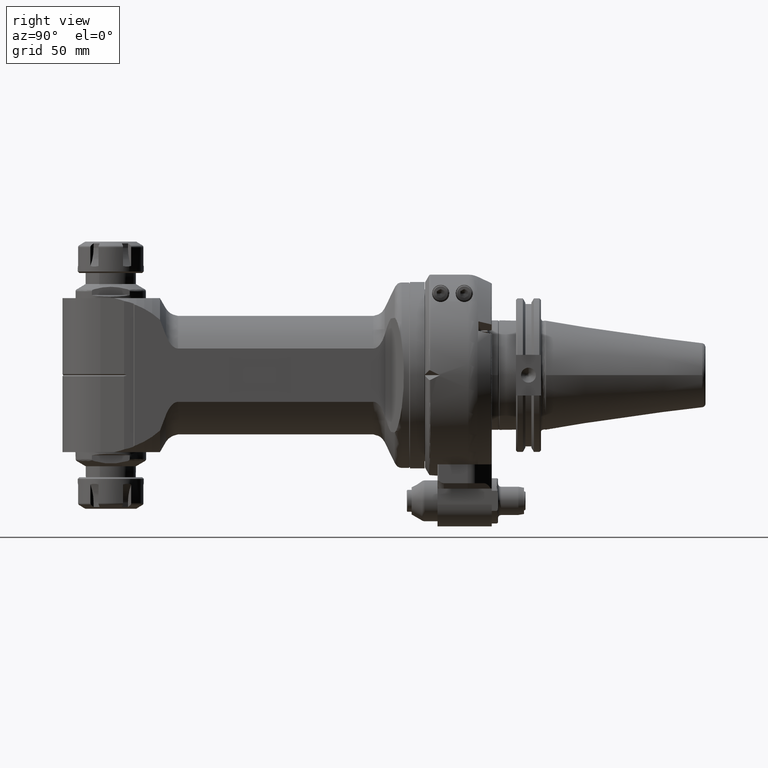
[diagram: clean part render]
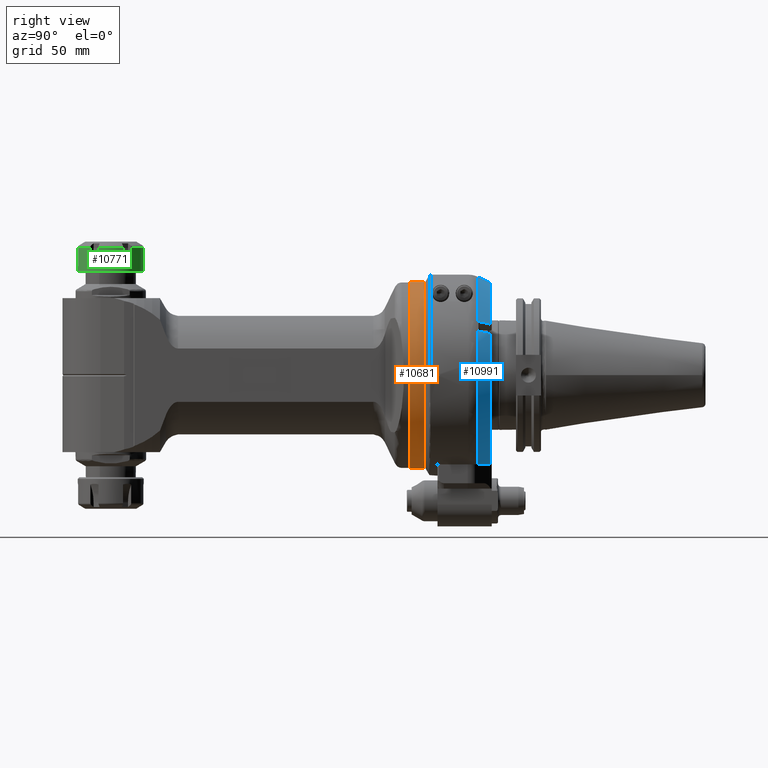
[diagram: same view with three faces highlighted in distinct colors, each labeled with its STEP entity id]
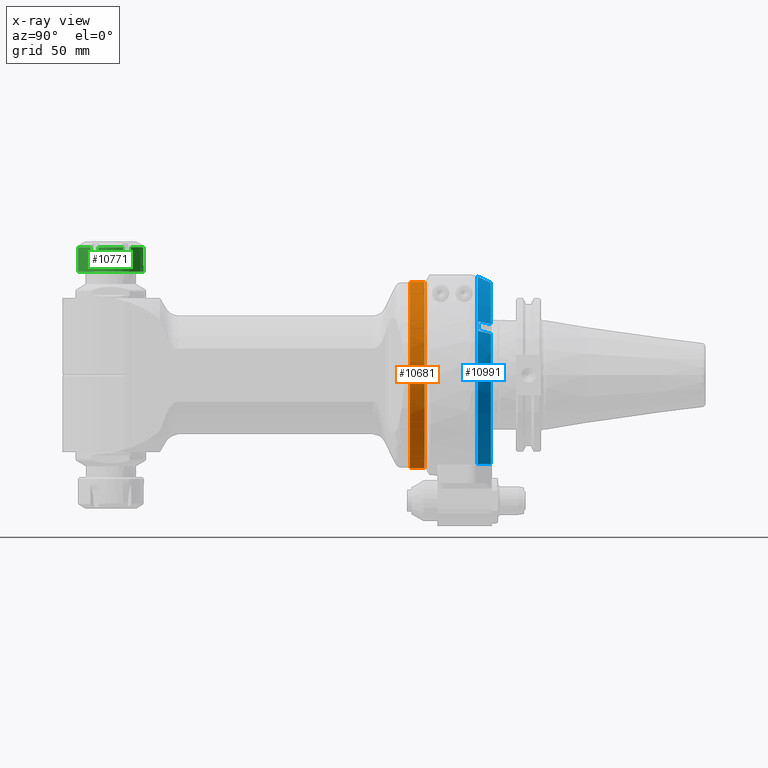
[diagram: x-ray of the same camera — body ghosted, the three highlighted faces saturated]
A machine part, right view with three faces highlighted in distinct colors.
The next image is the same camera in x-ray (body ghosted, the three faces saturated) — at least one of them is partly hidden behind the body in this view.
Their STEP definitions:

[orange] entity #10681 — the highlighted cylindrical surface (bore or boss wall) has radius 59.3 mm, axis along (-0, 1, 0).
#1058=FACE_OUTER_BOUND('',#1746,.T.);
#1746=EDGE_LOOP('',(#7222,#7223,#7224,#7225));
#2490=LINE('',#15999,#3165);
#3165=VECTOR('',#12759,59.3);
#3862=CIRCLE('',#11431,59.3);
#3863=CIRCLE('',#11433,59.3);
#4440=VERTEX_POINT('',#15995);
#4441=VERTEX_POINT('',#15998);
#5546=EDGE_CURVE('',#4440,#4440,#3862,.T.);
#5547=EDGE_CURVE('',#4440,#4441,#2490,.T.);
#5548=EDGE_CURVE('',#4441,#4441,#3863,.T.);
#7222=ORIENTED_EDGE('',*,*,#5546,.F.);
#7223=ORIENTED_EDGE('',*,*,#5547,.T.);
#7224=ORIENTED_EDGE('',*,*,#5548,.T.);
#7225=ORIENTED_EDGE('',*,*,#5547,.F.);
#10513=CYLINDRICAL_SURFACE('',#11432,59.3);
#10681=ADVANCED_FACE('',(#1058),#10513,.T.);
#11431=AXIS2_PLACEMENT_3D('',#15996,#12755,#12756);
#11432=AXIS2_PLACEMENT_3D('',#15997,#12757,#12758);
#11433=AXIS2_PLACEMENT_3D('',#16000,#12760,#12761);
#12755=DIRECTION('center_axis',(-1.,0.,0.));
#12756=DIRECTION('ref_axis',(0.,1.,0.));
#12757=DIRECTION('center_axis',(-1.,0.,0.));
#12758=DIRECTION('ref_axis',(0.,-1.,0.));
#12759=DIRECTION('',(1.,0.,0.));
#12760=DIRECTION('center_axis',(-1.,0.,0.));
#12761=DIRECTION('ref_axis',(0.,1.,0.));
#15995=CARTESIAN_POINT('',(5.70000000000206,59.3,-7.2621555189438E-15));
#15996=CARTESIAN_POINT('Origin',(5.700000000002,0.,0.));
#15997=CARTESIAN_POINT('Origin',(484.7315722282,0.,0.));
#15998=CARTESIAN_POINT('',(15.,59.3,-7.2621555189438E-15));
#15999=CARTESIAN_POINT('',(484.7315722282,59.3,-7.2621555189438E-15));
#16000=CARTESIAN_POINT('Origin',(15.,0.,0.));

[blue] entity #10991 — the highlighted conical surface has half-angle 25 deg.
#148=(
BOUNDED_CURVE()
B_SPLINE_CURVE(2,(#18518,#18519,#18520),.UNSPECIFIED.,.F.,.F.)
B_SPLINE_CURVE_WITH_KNOTS((3,3),(0.487603386350164,2.21066280968085),
 .UNSPECIFIED.)
CURVE()
GEOMETRIC_REPRESENTATION_ITEM()
RATIONAL_B_SPLINE_CURVE((1.00692453140539,1.01790271037782,1.0200003519283))
REPRESENTATION_ITEM('')
);
#325=B_SPLINE_CURVE_WITH_KNOTS('',3,(#18524,#18525,#18526,#18527,#18528,
#18529,#18530,#18531,#18532,#18533),.UNSPECIFIED.,.F.,.F.,(4,3,3,4),(9.90888817221963E-6,
0.3333333333333,0.6666666666667,1.),.UNSPECIFIED.);
#326=B_SPLINE_CURVE_WITH_KNOTS('',3,(#18537,#18538,#18539,#18540,#18541,
#18542,#18543,#18544,#18545,#18546),.UNSPECIFIED.,.F.,.F.,(4,3,3,4),(0.,
0.3333333333333,0.6666666666667,0.999990373845162),.UNSPECIFIED.);
#327=B_SPLINE_CURVE_WITH_KNOTS('',3,(#18549,#18550,#18551,#18552,#18553,
#18554,#18555,#18556,#18557,#18558),.UNSPECIFIED.,.F.,.F.,(4,3,3,4),(1.66554869588638E-6,
0.3333333333333,0.6666666666667,1.),.UNSPECIFIED.);
#978=CONICAL_SURFACE('',#12026,60.72877327237,0.436332312998582);
#1368=FACE_OUTER_BOUND('',#2094,.T.);
#2094=EDGE_LOOP('',(#8701,#8702,#8703,#8704,#8705,#8706,#8707,#8708));
#4104=CIRCLE('',#12025,62.68830901851);
#4105=CIRCLE('',#12027,58.76923752623);
#4106=CIRCLE('',#12028,62.46361509432);
#4107=CIRCLE('',#12029,58.76923752623);
#4928=VERTEX_POINT('',#18473);
#4929=VERTEX_POINT('',#18474);
#4930=VERTEX_POINT('',#18517);
#4931=VERTEX_POINT('',#18521);
#4932=VERTEX_POINT('',#18523);
#4933=VERTEX_POINT('',#18534);
#4934=VERTEX_POINT('',#18536);
#4935=VERTEX_POINT('',#18547);
#6284=EDGE_CURVE('',#4928,#4929,#4104,.T.);
#6288=EDGE_CURVE('',#4930,#4928,#148,.T.);
#6289=EDGE_CURVE('',#4931,#4930,#4105,.T.);
#6290=EDGE_CURVE('',#4931,#4932,#325,.T.);
#6291=EDGE_CURVE('',#4933,#4932,#4106,.T.);
#6292=EDGE_CURVE('',#4933,#4934,#326,.T.);
#6293=EDGE_CURVE('',#4935,#4934,#4107,.T.);
#6294=EDGE_CURVE('',#4935,#4929,#327,.T.);
#8701=ORIENTED_EDGE('',*,*,#6284,.F.);
#8702=ORIENTED_EDGE('',*,*,#6288,.F.);
#8703=ORIENTED_EDGE('',*,*,#6289,.F.);
#8704=ORIENTED_EDGE('',*,*,#6290,.T.);
#8705=ORIENTED_EDGE('',*,*,#6291,.F.);
#8706=ORIENTED_EDGE('',*,*,#6292,.T.);
#8707=ORIENTED_EDGE('',*,*,#6293,.F.);
#8708=ORIENTED_EDGE('',*,*,#6294,.T.);
#10991=ADVANCED_FACE('',(#1368),#978,.T.);
#12025=AXIS2_PLACEMENT_3D('',#18475,#14214,#14215);
#12026=AXIS2_PLACEMENT_3D('',#18516,#14216,#14217);
#12027=AXIS2_PLACEMENT_3D('',#18522,#14218,#14219);
#12028=AXIS2_PLACEMENT_3D('',#18535,#14220,#14221);
#12029=AXIS2_PLACEMENT_3D('',#18548,#14222,#14223);
#14214=DIRECTION('center_axis',(0.,-1.,0.));
#14215=DIRECTION('ref_axis',(0.424831454853905,0.,-0.905272464491611));
#14216=DIRECTION('center_axis',(0.,-1.,0.));
#14217=DIRECTION('ref_axis',(0.,0.,1.));
#14218=DIRECTION('center_axis',(0.,1.,0.));
#14219=DIRECTION('ref_axis',(0.894265716161126,0.,0.447536399523913));
#14220=DIRECTION('center_axis',(0.,1.,0.));
#14221=DIRECTION('ref_axis',(0.836648514801896,0.,0.547740141563298));
#14222=DIRECTION('center_axis',(0.,1.,0.));
#14223=DIRECTION('ref_axis',(0.025523554657049,0.,0.99967422101286));
#18473=CARTESIAN_POINT('',(26.63196552267,33.5181420938,-56.75));
#18474=CARTESIAN_POINT('',(1.49999987294151,33.5181468911745,62.6703582843571));
#18475=CARTESIAN_POINT('Origin',(0.,33.5181420938,0.));
#18516=CARTESIAN_POINT('Origin',(0.,37.72038006238,0.));
#18517=CARTESIAN_POINT('',(15.27287724741,41.92261803097,-56.75));
#18518=CARTESIAN_POINT('Ctrl Pts',(15.272877247407,41.9226180309645,-56.75));
#18519=CARTESIAN_POINT('Ctrl Pts',(20.7691594950968,38.8594749470035,-56.75));
#18520=CARTESIAN_POINT('Ctrl Pts',(26.6319655225192,33.518142093926,-56.75));
#18521=CARTESIAN_POINT('',(52.5553142880574,41.9226180618413,26.3013729669792));
#18522=CARTESIAN_POINT('Origin',(0.,41.92261803097,0.));
#18523=CARTESIAN_POINT('',(55.76009079782,33.99999976923,28.15165154783));
#18524=CARTESIAN_POINT('Ctrl Pts',(52.5553143139194,41.9226180758503,26.301372982161));
#18525=CARTESIAN_POINT('Ctrl Pts',(52.9114744831261,41.0422371498281,26.5070021517272));
#18526=CARTESIAN_POINT('Ctrl Pts',(53.26756227187,40.1620018949492,26.7125895324136));
#18527=CARTESIAN_POINT('Ctrl Pts',(53.6236453074315,39.2817478027927,26.9181741688489));
#18528=CARTESIAN_POINT('Ctrl Pts',(53.9797389284688,38.4014675428401,27.1237649168115));
#18529=CARTESIAN_POINT('Ctrl Pts',(54.3358277960411,37.5211684444899,27.3293529203599));
#18530=CARTESIAN_POINT('Ctrl Pts',(54.6919029398986,36.6408743966448,27.5349330005177));
#18531=CARTESIAN_POINT('Ctrl Pts',(55.0479780837559,35.7605803487999,27.7405130806755));
#18532=CARTESIAN_POINT('Ctrl Pts',(55.4040395038984,34.88029135146,27.9460852374428));
#18533=CARTESIAN_POINT('Ctrl Pts',(55.7600907978184,33.99999976923,28.1516515478328));
#18534=CARTESIAN_POINT('',(52.26009079782,33.99999976923,34.21382937432));
#18535=CARTESIAN_POINT('Origin',(0.,33.99999976923,0.));
#18536=CARTESIAN_POINT('',(49.0553142877506,41.922618060959,32.3635507937782));
#18537=CARTESIAN_POINT('Ctrl Pts',(52.2600907978213,33.99999976923,34.2138293743178));
#18538=CARTESIAN_POINT('Ctrl Pts',(51.9040395039013,34.88029135147,34.0082630639277));
#18539=CARTESIAN_POINT('Ctrl Pts',(51.5479780534364,35.7605804235349,33.8026908896536));
#18540=CARTESIAN_POINT('Ctrl Pts',(51.1919029399,36.6408743966523,33.5971108270015));
#18541=CARTESIAN_POINT('Ctrl Pts',(50.8358278263635,37.5211683697699,33.3915307643494));
#18542=CARTESIAN_POINT('Ctrl Pts',(50.4797390497557,38.4014672439401,33.1859428133193));
#18543=CARTESIAN_POINT('Ctrl Pts',(50.1236453074333,39.2817478028002,32.9803519953327));
#18544=CARTESIAN_POINT('Ctrl Pts',(49.7675618485517,40.1620029405092,32.7747671144933));
#18545=CARTESIAN_POINT('Ctrl Pts',(49.4114734242423,41.0422397639661,32.5691793668629));
#18546=CARTESIAN_POINT('Ctrl Pts',(49.0553143130804,41.9226180745656,32.363550808159));
#18547=CARTESIAN_POINT('',(1.49999984619797,41.922618035418,58.7500917420737));
#18548=CARTESIAN_POINT('Origin',(0.,41.92261803097,0.));
#18549=CARTESIAN_POINT('Ctrl Pts',(1.499999846154,41.9226180358762,58.7500917430561));
#18550=CARTESIAN_POINT('Ctrl Pts',(1.499999846154,40.988771374137,59.1856935028463));
#18551=CARTESIAN_POINT('Ctrl Pts',(1.499999846154,40.0549503420749,59.6212801455947));
#18552=CARTESIAN_POINT('Ctrl Pts',(1.499999846154,39.1211265734244,60.0568651160765));
#18553=CARTESIAN_POINT('Ctrl Pts',(1.499999846154,38.1872981387634,60.4924522630333));
#18554=CARTESIAN_POINT('Ctrl Pts',(1.499999846154,37.2534669674866,60.9280377377067));
#18555=CARTESIAN_POINT('Ctrl Pts',(1.499999846154,36.3196344528431,61.3636210726185));
#18556=CARTESIAN_POINT('Ctrl Pts',(1.499999846154,35.3858019381999,61.79920440753));
#18557=CARTESIAN_POINT('Ctrl Pts',(1.499999846154,34.45196808019,62.23478560268));
#18558=CARTESIAN_POINT('Ctrl Pts',(1.499999846154,33.51815168776,62.67035604739));

[green] entity #10771 — the highlighted cylindrical surface (bore or boss wall) has radius 21 mm, axis along (0, -0, 1).
#273=B_SPLINE_CURVE_WITH_KNOTS('',3,(#16933,#16934,#16935,#16936,#16937,
#16938,#16939,#16940,#16941,#16942),.UNSPECIFIED.,.F.,.F.,(4,2,2,2,4),(2.87463116985497,
2.88765206158743,3.16316369067489,3.43867531976235,3.45169621149284),
 .UNSPECIFIED.);
#274=B_SPLINE_CURVE_WITH_KNOTS('',3,(#16950,#16951,#16952,#16953,#16954,
#16955,#16956,#16957,#16958,#16959),.UNSPECIFIED.,.F.,.F.,(4,2,2,2,4),(-3.45169621149207,
-3.43867531976234,-3.16316369067487,-2.88765206158741,-2.8746311698532),
 .UNSPECIFIED.);
#275=B_SPLINE_CURVE_WITH_KNOTS('',3,(#16967,#16968,#16969,#16970,#16971,
#16972,#16973,#16974,#16975,#16976),.UNSPECIFIED.,.F.,.F.,(4,2,2,2,4),(-3.45169621149474,
-3.43867531976234,-3.16316369067487,-2.8876520615874,-2.87463116985385),
 .UNSPECIFIED.);
#276=B_SPLINE_CURVE_WITH_KNOTS('',3,(#16984,#16985,#16986,#16987,#16988,
#16989),.UNSPECIFIED.,.F.,.F.,(4,2,4),(-3.45169621149496,-3.43867531976235,
-3.16316369067489),.UNSPECIFIED.);
#277=B_SPLINE_CURVE_WITH_KNOTS('',3,(#16992,#16993,#16994,#16995,#16996,
#16997),.UNSPECIFIED.,.F.,.F.,(4,2,4),(-3.16316369067489,-2.88765206158743,
-2.87463116985475),.UNSPECIFIED.);
#278=B_SPLINE_CURVE_WITH_KNOTS('',3,(#17005,#17006,#17007,#17008,#17009,
#17010,#17011,#17012,#17013,#17014),.UNSPECIFIED.,.F.,.F.,(4,2,2,2,4),(-3.45169621149594,
-3.43867531976232,-3.1631636906748,-2.88765206158729,-2.87463116985312),
 .UNSPECIFIED.);
#279=B_SPLINE_CURVE_WITH_KNOTS('',3,(#17022,#17023,#17024,#17025,#17026,
#17027,#17028,#17029,#17030,#17031),.UNSPECIFIED.,.F.,.F.,(4,2,2,2,4),(-3.45169621149468,
-3.43867531976232,-3.1631636906748,-2.88765206158729,-2.87463116985391),
 .UNSPECIFIED.);
#1148=FACE_OUTER_BOUND('',#1849,.T.);
#1849=EDGE_LOOP('',(#7695,#7696,#7697,#7698,#7699,#7700,#7701,#7702,#7703,
#7704,#7705,#7706,#7707,#7708,#7709,#7710,#7711,#7712,#7713,#7714,#7715,
#7716,#7717,#7718,#7719,#7720,#7721,#7722));
#2555=LINE('',#16944,#3230);
#2556=LINE('',#16948,#3231);
#2557=LINE('',#16961,#3232);
#2558=LINE('',#16965,#3233);
#2559=LINE('',#16978,#3234);
#2560=LINE('',#16982,#3235);
#2561=LINE('',#16990,#3236);
#2562=LINE('',#16999,#3237);
#2563=LINE('',#17003,#3238);
#2564=LINE('',#17016,#3239);
#2565=LINE('',#17020,#3240);
#2566=LINE('',#17033,#3241);
#2567=LINE('',#17036,#3242);
#3230=VECTOR('',#13204,11.85891834633);
#3231=VECTOR('',#13207,11.85891834642);
#3232=VECTOR('',#13208,11.85891834632);
#3233=VECTOR('',#13211,11.85891834642);
#3234=VECTOR('',#13212,11.85891834632);
#3235=VECTOR('',#13215,11.85891834642);
#3236=VECTOR('',#13216,21.);
#3237=VECTOR('',#13217,11.85891834632);
#3238=VECTOR('',#13220,11.85891834642);
#3239=VECTOR('',#13221,11.85891834632);
#3240=VECTOR('',#13224,11.85891834642);
#3241=VECTOR('',#13225,11.85891834632);
#3242=VECTOR('',#13228,11.85891834642);
#3950=CIRCLE('',#11621,21.);
#3951=CIRCLE('',#11623,21.);
#3952=CIRCLE('',#11624,21.);
#3953=CIRCLE('',#11625,21.);
#3954=CIRCLE('',#11626,21.);
#3955=CIRCLE('',#11627,21.);
#3956=CIRCLE('',#11628,21.);
#4612=VERTEX_POINT('',#16927);
#4613=VERTEX_POINT('',#16931);
#4614=VERTEX_POINT('',#16932);
#4615=VERTEX_POINT('',#16943);
#4616=VERTEX_POINT('',#16945);
#4617=VERTEX_POINT('',#16947);
#4618=VERTEX_POINT('',#16949);
#4619=VERTEX_POINT('',#16960);
#4620=VERTEX_POINT('',#16962);
#4621=VERTEX_POINT('',#16964);
#4622=VERTEX_POINT('',#16966);
#4623=VERTEX_POINT('',#16977);
#4624=VERTEX_POINT('',#16979);
#4625=VERTEX_POINT('',#16981);
#4626=VERTEX_POINT('',#16983);
#4627=VERTEX_POINT('',#16991);
#4628=VERTEX_POINT('',#16998);
#4629=VERTEX_POINT('',#17000);
#4630=VERTEX_POINT('',#17002);
#4631=VERTEX_POINT('',#17004);
#4632=VERTEX_POINT('',#17015);
#4633=VERTEX_POINT('',#17017);
#4634=VERTEX_POINT('',#17019);
#4635=VERTEX_POINT('',#17021);
#4636=VERTEX_POINT('',#17032);
#4637=VERTEX_POINT('',#17034);
#5798=EDGE_CURVE('',#4612,#4612,#3950,.T.);
#5800=EDGE_CURVE('',#4613,#4614,#273,.F.);
#5801=EDGE_CURVE('',#4614,#4615,#2555,.T.);
#5802=EDGE_CURVE('',#4616,#4615,#3951,.T.);
#5803=EDGE_CURVE('',#4616,#4617,#2556,.T.);
#5804=EDGE_CURVE('',#4617,#4618,#274,.T.);
#5805=EDGE_CURVE('',#4618,#4619,#2557,.T.);
#5806=EDGE_CURVE('',#4620,#4619,#3952,.T.);
#5807=EDGE_CURVE('',#4620,#4621,#2558,.T.);
#5808=EDGE_CURVE('',#4621,#4622,#275,.T.);
#5809=EDGE_CURVE('',#4622,#4623,#2559,.T.);
#5810=EDGE_CURVE('',#4624,#4623,#3953,.T.);
#5811=EDGE_CURVE('',#4624,#4625,#2560,.T.);
#5812=EDGE_CURVE('',#4625,#4626,#276,.T.);
#5813=EDGE_CURVE('',#4626,#4612,#2561,.T.);
#5814=EDGE_CURVE('',#4626,#4627,#277,.T.);
#5815=EDGE_CURVE('',#4627,#4628,#2562,.T.);
#5816=EDGE_CURVE('',#4629,#4628,#3954,.T.);
#5817=EDGE_CURVE('',#4629,#4630,#2563,.T.);
#5818=EDGE_CURVE('',#4630,#4631,#278,.T.);
#5819=EDGE_CURVE('',#4631,#4632,#2564,.T.);
#5820=EDGE_CURVE('',#4633,#4632,#3955,.T.);
#5821=EDGE_CURVE('',#4633,#4634,#2565,.T.);
#5822=EDGE_CURVE('',#4634,#4635,#279,.T.);
#5823=EDGE_CURVE('',#4635,#4636,#2566,.T.);
#5824=EDGE_CURVE('',#4637,#4636,#3956,.T.);
#5825=EDGE_CURVE('',#4637,#4613,#2567,.T.);
#7695=ORIENTED_EDGE('',*,*,#5800,.T.);
#7696=ORIENTED_EDGE('',*,*,#5801,.T.);
#7697=ORIENTED_EDGE('',*,*,#5802,.F.);
#7698=ORIENTED_EDGE('',*,*,#5803,.T.);
#7699=ORIENTED_EDGE('',*,*,#5804,.T.);
#7700=ORIENTED_EDGE('',*,*,#5805,.T.);
#7701=ORIENTED_EDGE('',*,*,#5806,.F.);
#7702=ORIENTED_EDGE('',*,*,#5807,.T.);
#7703=ORIENTED_EDGE('',*,*,#5808,.T.);
#7704=ORIENTED_EDGE('',*,*,#5809,.T.);
#7705=ORIENTED_EDGE('',*,*,#5810,.F.);
#7706=ORIENTED_EDGE('',*,*,#5811,.T.);
#7707=ORIENTED_EDGE('',*,*,#5812,.T.);
#7708=ORIENTED_EDGE('',*,*,#5813,.T.);
#7709=ORIENTED_EDGE('',*,*,#5798,.F.);
#7710=ORIENTED_EDGE('',*,*,#5813,.F.);
#7711=ORIENTED_EDGE('',*,*,#5814,.T.);
#7712=ORIENTED_EDGE('',*,*,#5815,.T.);
#7713=ORIENTED_EDGE('',*,*,#5816,.F.);
#7714=ORIENTED_EDGE('',*,*,#5817,.T.);
#7715=ORIENTED_EDGE('',*,*,#5818,.T.);
#7716=ORIENTED_EDGE('',*,*,#5819,.T.);
#7717=ORIENTED_EDGE('',*,*,#5820,.F.);
#7718=ORIENTED_EDGE('',*,*,#5821,.T.);
#7719=ORIENTED_EDGE('',*,*,#5822,.T.);
#7720=ORIENTED_EDGE('',*,*,#5823,.T.);
#7721=ORIENTED_EDGE('',*,*,#5824,.F.);
#7722=ORIENTED_EDGE('',*,*,#5825,.T.);
#10528=CYLINDRICAL_SURFACE('',#11622,21.);
#10771=ADVANCED_FACE('',(#1148),#10528,.T.);
#11621=AXIS2_PLACEMENT_3D('',#16928,#13199,#13200);
#11622=AXIS2_PLACEMENT_3D('',#16930,#13202,#13203);
#11623=AXIS2_PLACEMENT_3D('',#16946,#13205,#13206);
#11624=AXIS2_PLACEMENT_3D('',#16963,#13209,#13210);
#11625=AXIS2_PLACEMENT_3D('',#16980,#13213,#13214);
#11626=AXIS2_PLACEMENT_3D('',#17001,#13218,#13219);
#11627=AXIS2_PLACEMENT_3D('',#17018,#13222,#13223);
#11628=AXIS2_PLACEMENT_3D('',#17035,#13226,#13227);
#13199=DIRECTION('center_axis',(0.,1.,0.));
#13200=DIRECTION('ref_axis',(-1.,0.,0.));
#13202=DIRECTION('center_axis',(0.,-1.,0.));
#13203=DIRECTION('ref_axis',(1.,0.,0.));
#13204=DIRECTION('',(-1.342125547728E-13,-1.,3.804686262533E-14));
#13205=DIRECTION('center_axis',(0.,-1.,0.));
#13206=DIRECTION('ref_axis',(0.618448856227896,0.,-0.785825051923395));
#13207=DIRECTION('',(1.500304630127E-12,1.,-1.615044381193E-12));
#13208=DIRECTION('',(-4.553640251221E-14,-1.,1.345121363683E-13));
#13209=DIRECTION('center_axis',(0.,-1.,0.));
#13210=DIRECTION('ref_axis',(-0.3713200297819,0.,-0.928504946396501));
#13211=DIRECTION('',(-6.566828572759E-13,1.,-2.105159871386E-12));
#13212=DIRECTION('',(1.006594160796E-13,-1.,1.027564872479E-13));
#13213=DIRECTION('center_axis',(0.,-1.,0.));
#13214=DIRECTION('ref_axis',(-0.989768886009832,0.,-0.142679894473105));
#13215=DIRECTION('',(-2.140210918056E-12,1.,-4.888422684124E-13));
#13216=DIRECTION('',(0.,1.,0.));
#13217=DIRECTION('',(1.366092075366E-13,-1.,-2.801087917692E-14));
#13218=DIRECTION('center_axis',(0.,-1.,0.));
#13219=DIRECTION('ref_axis',(-0.618448856227896,0.,0.785825051923395));
#13220=DIRECTION('',(-1.50270128289E-12,1.,1.604559025351E-12));
#13221=DIRECTION('',(4.793305527601E-14,-1.,-1.237271989312E-13));
#13222=DIRECTION('center_axis',(0.,-1.,0.));
#13223=DIRECTION('ref_axis',(0.3713200297819,0.,0.928504946396501));
#13224=DIRECTION('',(6.32716329638E-13,1.,2.103961545004E-12));
#13225=DIRECTION('',(-9.826276331582E-14,-1.,-9.257071300179E-14));
#13226=DIRECTION('center_axis',(0.,-1.,0.));
#13227=DIRECTION('ref_axis',(0.989768886009832,0.,0.142679894473105));
#13228=DIRECTION('',(2.145004223584E-12,1.,4.859587955559E-13));
#16927=CARTESIAN_POINT('',(184.5,-66.,5.806621047091E-13));
#16928=CARTESIAN_POINT('Origin',(205.5,-66.,5.780903464309E-13));
#16930=CARTESIAN_POINT('Origin',(205.5,-75.,6.240535796504E-13));
#16931=CARTESIAN_POINT('',(226.2851466062,-69.53264247114,2.996277783942));
#16932=CARTESIAN_POINT('',(226.2851466062,-69.53264247124,-2.996277783935));
#16933=CARTESIAN_POINT('Ctrl Pts',(226.285146606207,-69.5326424712464,-2.99627778393416));
#16934=CARTESIAN_POINT('Ctrl Pts',(226.291588087868,-69.5201638709765,-2.95159329526064));
#16935=CARTESIAN_POINT('Ctrl Pts',(226.297897483794,-69.5079669129783,-2.90680446272863));
#16936=CARTESIAN_POINT('Ctrl Pts',(226.434713406163,-69.2439922699418,-1.91225557974145));
#16937=CARTESIAN_POINT('Ctrl Pts',(226.5,-69.1256579129621,-0.918372096957563));
#16938=CARTESIAN_POINT('Ctrl Pts',(226.5,-69.1256579129621,0.918372096958811));
#16939=CARTESIAN_POINT('Ctrl Pts',(226.434713406163,-69.2439922699418,1.9122555797427));
#16940=CARTESIAN_POINT('Ctrl Pts',(226.297897483795,-69.5079669129765,2.9068044627231));
#16941=CARTESIAN_POINT('Ctrl Pts',(226.29158808787,-69.5201638709728,2.95159329524836));
#16942=CARTESIAN_POINT('Ctrl Pts',(226.285146606209,-69.5326424712407,2.99627778391516));
#16943=CARTESIAN_POINT('',(226.2851466062,-81.39156081756,-2.996277783935));
#16944=CARTESIAN_POINT('',(226.2851466062,-69.53264247124,-2.996277783935));
#16945=CARTESIAN_POINT('',(218.4874259808,-81.39156081756,-16.50232609039));
#16946=CARTESIAN_POINT('Origin',(205.5,-81.39156081756,6.56695446372E-13));
#16947=CARTESIAN_POINT('',(218.4874259808,-69.53264247114,-16.50232609041));
#16948=CARTESIAN_POINT('',(218.4874259808,-81.39156081756,-16.50232609039));
#16949=CARTESIAN_POINT('',(213.2977206254,-69.53264247124,-19.49860387433));
#16950=CARTESIAN_POINT('Ctrl Pts',(218.487425980764,-69.5326424712382,-16.502326090408));
#16951=CARTESIAN_POINT('Ctrl Pts',(218.451948819256,-69.5201638709711,-16.5302468214959));
#16952=CARTESIAN_POINT('Ctrl Pts',(218.416315250447,-69.5079669129755,-16.5581053349102));
#16953=CARTESIAN_POINT('Ctrl Pts',(217.623418613667,-69.2439922699415,-17.1738658408118));
#16954=CARTESIAN_POINT('Ctrl Pts',(216.795333566093,-69.1256579129617,-17.7273474309933));
#16955=CARTESIAN_POINT('Ctrl Pts',(215.204666433908,-69.1256579129617,-18.6457195279515));
#16956=CARTESIAN_POINT('Ctrl Pts',(214.311294792497,-69.2439922699414,-19.086121420554));
#16957=CARTESIAN_POINT('Ctrl Pts',(213.381582233334,-69.5079669129796,-19.4649097976361));
#16958=CARTESIAN_POINT('Ctrl Pts',(213.339639268587,-69.5201638709794,-19.4818401167502));
#16959=CARTESIAN_POINT('Ctrl Pts',(213.297720625404,-69.532642471251,-19.4986038743322));
#16960=CARTESIAN_POINT('',(213.2977206254,-81.39156081756,-19.49860387433));
#16961=CARTESIAN_POINT('',(213.2977206254,-69.53264247124,-19.49860387433));
#16962=CARTESIAN_POINT('',(197.7022793746,-81.39156081756,-19.49860387433));
#16963=CARTESIAN_POINT('Origin',(205.5,-81.39156081756,6.56695446372E-13));
#16964=CARTESIAN_POINT('',(197.7022793746,-69.53264247114,-19.49860387435));
#16965=CARTESIAN_POINT('',(197.7022793746,-81.39156081756,-19.49860387433));
#16966=CARTESIAN_POINT('',(192.5125740192,-69.53264247125,-16.50232609039));
#16967=CARTESIAN_POINT('Ctrl Pts',(197.702279374578,-69.5326424712458,-19.4986038743252));
#16968=CARTESIAN_POINT('Ctrl Pts',(197.660360731401,-69.520163870976,-19.4818401167455));
#16969=CARTESIAN_POINT('Ctrl Pts',(197.61841776666,-69.5079669129779,-19.4649097976337));
#16970=CARTESIAN_POINT('Ctrl Pts',(196.688705207503,-69.2439922699414,-19.086121420554));
#16971=CARTESIAN_POINT('Ctrl Pts',(195.795333566092,-69.1256579129617,-18.6457195279515));
#16972=CARTESIAN_POINT('Ctrl Pts',(194.204666433907,-69.1256579129617,-17.7273474309933));
#16973=CARTESIAN_POINT('Ctrl Pts',(193.376581386333,-69.2439922699414,-17.1738658408118));
#16974=CARTESIAN_POINT('Ctrl Pts',(192.583684749542,-69.507966912979,-16.558105334902));
#16975=CARTESIAN_POINT('Ctrl Pts',(192.548051180723,-69.5201638709782,-16.5302468214795));
#16976=CARTESIAN_POINT('Ctrl Pts',(192.512574019205,-69.5326424712491,-16.5023260903834));
#16977=CARTESIAN_POINT('',(192.5125740192,-81.39156081756,-16.50232609039));
#16978=CARTESIAN_POINT('',(192.5125740192,-69.53264247124,-16.50232609039));
#16979=CARTESIAN_POINT('',(184.7148533938,-81.39156081756,-2.996277783935));
#16980=CARTESIAN_POINT('Origin',(205.5,-81.39156081756,6.56695446372E-13));
#16981=CARTESIAN_POINT('',(184.7148533938,-69.53264247125,-2.996277783934));
#16982=CARTESIAN_POINT('',(184.7148533938,-81.39156081756,-2.996277783935));
#16983=CARTESIAN_POINT('',(184.5,-69.1256579129621,6.22436024849608E-13));
#16984=CARTESIAN_POINT('Ctrl Pts',(184.714853393794,-69.5326424712468,-2.99627778393579));
#16985=CARTESIAN_POINT('Ctrl Pts',(184.708411912132,-69.5201638709768,-2.95159329526173));
#16986=CARTESIAN_POINT('Ctrl Pts',(184.702102516206,-69.5079669129785,-2.9068044627292));
#16987=CARTESIAN_POINT('Ctrl Pts',(184.565286593837,-69.2439922699418,-1.91225557974148));
#16988=CARTESIAN_POINT('Ctrl Pts',(184.5,-69.1256579129621,-0.918372096957565));
#16989=CARTESIAN_POINT('Ctrl Pts',(184.5,-69.1256579129621,6.23390228327025E-13));
#16990=CARTESIAN_POINT('',(184.5,-75.,6.21481821372191E-13));
#16991=CARTESIAN_POINT('',(184.7148533938,-69.53264247125,2.996277783936));
#16992=CARTESIAN_POINT('Ctrl Pts',(184.5,-69.1256579129621,6.22002449546244E-13));
#16993=CARTESIAN_POINT('Ctrl Pts',(184.5,-69.1256579129621,0.918372096958811));
#16994=CARTESIAN_POINT('Ctrl Pts',(184.565286593837,-69.2439922699418,1.91225557974271));
#16995=CARTESIAN_POINT('Ctrl Pts',(184.702102516206,-69.5079669129786,2.90680446273066));
#16996=CARTESIAN_POINT('Ctrl Pts',(184.708411912132,-69.5201638709769,2.95159329526345));
#16997=CARTESIAN_POINT('Ctrl Pts',(184.714853393794,-69.532642471247,2.99627778393774));
#16998=CARTESIAN_POINT('',(184.7148533938,-81.39156081756,2.996277783936));
#16999=CARTESIAN_POINT('',(184.7148533938,-69.53264247124,2.996277783936));
#17000=CARTESIAN_POINT('',(192.5125740192,-81.39156081756,16.50232609039));
#17001=CARTESIAN_POINT('Origin',(205.5,-81.39156081756,6.56695446372E-13));
#17002=CARTESIAN_POINT('',(192.5125740192,-69.53264247125,16.50232609039));
#17003=CARTESIAN_POINT('',(192.5125740192,-81.39156081756,16.50232609039));
#17004=CARTESIAN_POINT('',(197.7022793746,-69.53264247124,19.49860387433));
#17005=CARTESIAN_POINT('Ctrl Pts',(192.512574019204,-69.5326424712474,16.5023260903838));
#17006=CARTESIAN_POINT('Ctrl Pts',(192.548051180723,-69.5201638709764,16.5302468214801));
#17007=CARTESIAN_POINT('Ctrl Pts',(192.583684749542,-69.5079669129771,16.5581053349028));
#17008=CARTESIAN_POINT('Ctrl Pts',(193.376581386333,-69.2439922699394,17.1738658408128));
#17009=CARTESIAN_POINT('Ctrl Pts',(194.204666433907,-69.1256579129597,17.7273474309944));
#17010=CARTESIAN_POINT('Ctrl Pts',(195.795333566092,-69.1256579129597,18.6457195279528));
#17011=CARTESIAN_POINT('Ctrl Pts',(196.688705207504,-69.2439922699394,19.0861214205554));
#17012=CARTESIAN_POINT('Ctrl Pts',(197.618417766666,-69.5079669129776,19.4649097976375));
#17013=CARTESIAN_POINT('Ctrl Pts',(197.660360731413,-69.5201638709774,19.4818401167516));
#17014=CARTESIAN_POINT('Ctrl Pts',(197.702279374596,-69.5326424712489,19.4986038743335));
#17015=CARTESIAN_POINT('',(197.7022793746,-81.39156081756,19.49860387433));
#17016=CARTESIAN_POINT('',(197.7022793746,-69.53264247124,19.49860387433));
#17017=CARTESIAN_POINT('',(213.2977206254,-81.39156081756,19.49860387433));
#17018=CARTESIAN_POINT('Origin',(205.5,-81.39156081756,6.56695446372E-13));
#17019=CARTESIAN_POINT('',(213.2977206254,-69.53264247114,19.49860387435));
#17020=CARTESIAN_POINT('',(213.2977206254,-81.39156081756,19.49860387433));
#17021=CARTESIAN_POINT('',(218.4874259808,-69.53264247124,16.50232609039));
#17022=CARTESIAN_POINT('Ctrl Pts',(213.297720625422,-69.5326424712438,19.4986038743265));
#17023=CARTESIAN_POINT('Ctrl Pts',(213.339639268598,-69.520163870974,19.4818401167469));
#17024=CARTESIAN_POINT('Ctrl Pts',(213.381582233339,-69.5079669129759,19.4649097976351));
#17025=CARTESIAN_POINT('Ctrl Pts',(214.311294792496,-69.2439922699394,19.0861214205554));
#17026=CARTESIAN_POINT('Ctrl Pts',(215.204666433908,-69.1256579129597,18.6457195279528));
#17027=CARTESIAN_POINT('Ctrl Pts',(216.795333566093,-69.1256579129597,17.7273474309944));
#17028=CARTESIAN_POINT('Ctrl Pts',(217.623418613667,-69.2439922699395,17.1738658408128));
#17029=CARTESIAN_POINT('Ctrl Pts',(218.416315250458,-69.5079669129769,16.5581053349033));
#17030=CARTESIAN_POINT('Ctrl Pts',(218.451948819276,-69.5201638709759,16.5302468214812));
#17031=CARTESIAN_POINT('Ctrl Pts',(218.487425980794,-69.5326424712467,16.5023260903854));
#17032=CARTESIAN_POINT('',(218.4874259808,-81.39156081756,16.50232609039));
#17033=CARTESIAN_POINT('',(218.4874259808,-69.53264247124,16.50232609039));
#17034=CARTESIAN_POINT('',(226.2851466062,-81.39156081756,2.996277783936));
#17035=CARTESIAN_POINT('Origin',(205.5,-81.39156081756,6.56695446372E-13));
#17036=CARTESIAN_POINT('',(226.2851466062,-81.39156081756,2.996277783936));